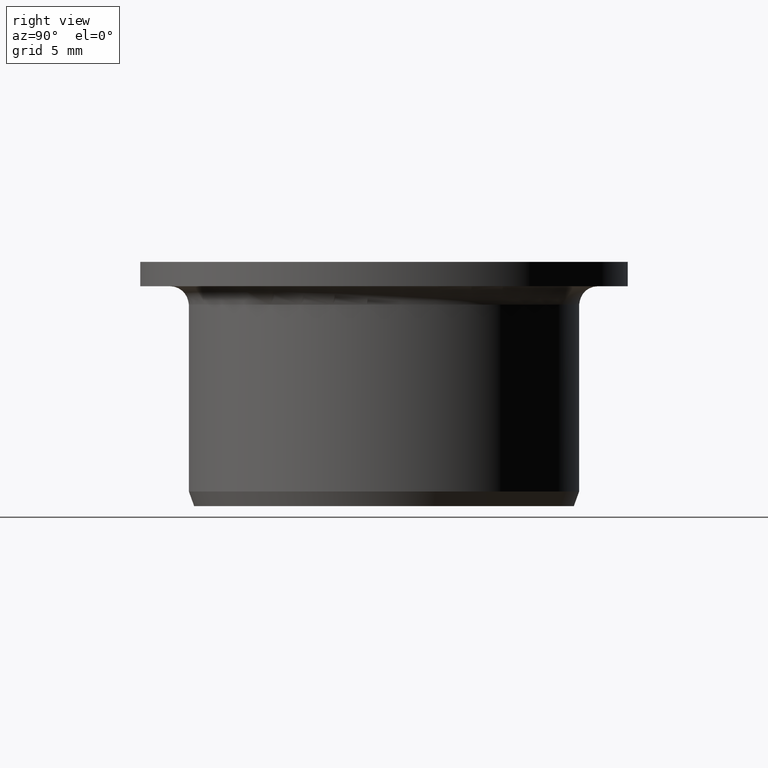
[diagram: clean part render]
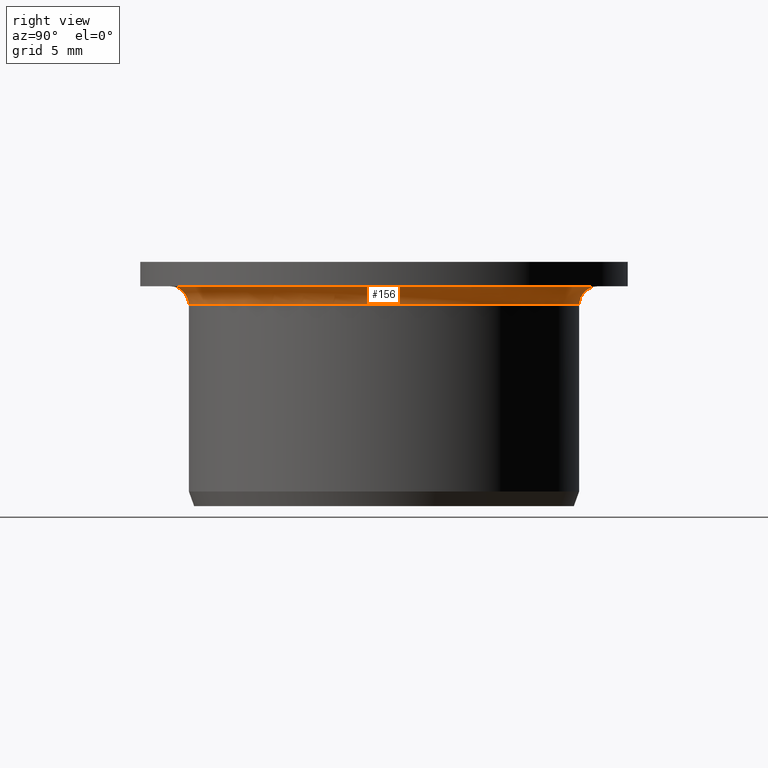
[diagram: same view with one face highlighted and labeled with its STEP entity id]
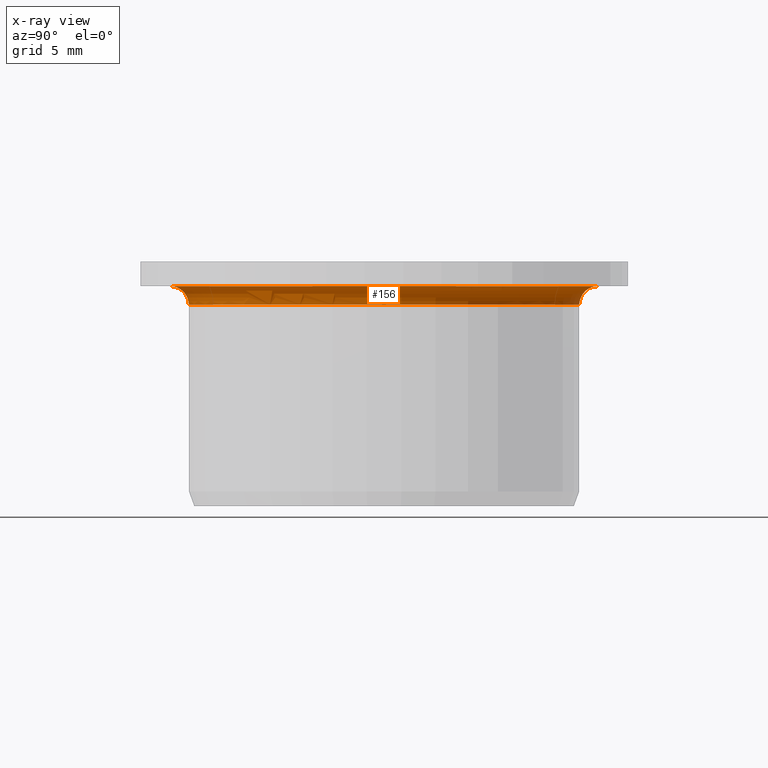
[diagram: x-ray of the same camera — body ghosted, the highlighted face saturated]
A machine part, right view. The second image highlights one B-rep face of the part: STEP entity #156.
The next image is the same camera in x-ray: the body ghosted, the highlighted face saturated — about 0% of this face is hidden behind the body in this view.
In plain terms, the highlighted toroidal blend (fillet) surface has major radius 17.5 mm and minor (blend) radius 1.5 mm.
Its self-contained STEP definition (entity closure, byte-faithful):
#156=ADVANCED_FACE('',(#173),#174,.F.);
#173=FACE_OUTER_BOUND('',#198,.T.);
#174=TOROIDAL_SURFACE('',#199,0.0175,0.0015);
#198=EDGE_LOOP('',(#243,#244,#245,#246));
#199=AXIS2_PLACEMENT_3D('',#247,#248,#249);
#243=ORIENTED_EDGE('',*,*,#328,.T.);
#244=ORIENTED_EDGE('',*,*,#329,.T.);
#245=ORIENTED_EDGE('',*,*,#330,.F.);
#246=ORIENTED_EDGE('',*,*,#316,.F.);
#247=CARTESIAN_POINT('',(0.0,0.0,0.0165));
#248=DIRECTION('',(0.0,-6.12323399573677E-017,-1.0));
#249=DIRECTION('',(0.0,1.0,-6.12323399573677E-017));
#316=EDGE_CURVE('',#349,#351,#352,.T.);
#328=EDGE_CURVE('',#349,#372,#373,.T.);
#329=EDGE_CURVE('',#372,#374,#375,.T.);
#330=EDGE_CURVE('',#351,#374,#376,.T.);
#349=VERTEX_POINT('',#418);
#351=VERTEX_POINT('',#421);
#352=B_SPLINE_CURVE_WITH_KNOTS('',3,(#422,#423,#424,#425,#426,#427,#428,#429,#430,#431,#432,#433,#434,#435),.UNSPECIFIED.,.F.,.F.,(4,2,2,2,2,2,4),(1.80924599605645E-005,0.000312356703172426,0.000606620946384288,0.00090088518959615,0.00119514943280801,0.00178367791923174,0.00237220640565547),.UNSPECIFIED.);
#372=VERTEX_POINT('',#484);
#373=CIRCLE('',#485,0.0175);
#374=VERTEX_POINT('',#486);
#375=B_SPLINE_CURVE_WITH_KNOTS('',3,(#487,#488,#489,#490,#491,#492,#493,#494,#495,#496,#497,#498,#499,#500),.UNSPECIFIED.,.F.,.F.,(4,2,2,2,2,2,4),(1.80924599605645E-005,0.000312356703172429,0.000606620946384293,0.000900885189596157,0.00119514943280802,0.00178367791923175,0.00237220640565548),.UNSPECIFIED.);
#376=CIRCLE('',#501,0.016);
#418=CARTESIAN_POINT('',(0.0174821448752821,-0.000790323072956412,0.018));
#421=CARTESIAN_POINT('',(0.0159913038571897,-0.000527447577519833,0.0165));
#422=CARTESIAN_POINT('',(0.0174821448752821,-0.000790323072956413,0.018));
#423=CARTESIAN_POINT('',(0.0173843520238893,-0.000773079554735449,0.018));
#424=CARTESIAN_POINT('',(0.0172880512966569,-0.00075609913826253,0.0179903969592375));
#425=CARTESIAN_POINT('',(0.0170983322540585,-0.000722646552298248,0.0179526401971581));
#426=CARTESIAN_POINT('',(0.0170039195668104,-0.000705999048215224,0.017924008857475));
#427=CARTESIAN_POINT('',(0.0168240902505482,-0.000674290287835843,0.0178493692083014));
#428=CARTESIAN_POINT('',(0.0167386362751922,-0.000659222446371791,0.0178036413444659));
#429=CARTESIAN_POINT('',(0.0165766367715526,-0.000630657563018748,0.0176953938886217));
#430=CARTESIAN_POINT('',(0.0164998630234948,-0.00061712027982604,0.0176323512176313));
#431=CARTESIAN_POINT('',(0.0162931624869087,-0.000580673398298983,0.01742552602038));
#432=CARTESIAN_POINT('',(0.0161813383319981,-0.000560955782693336,0.017258305897754));
#433=CARTESIAN_POINT('',(0.0160313222281505,-0.000534503896044239,0.0168967698691225));
#434=CARTESIAN_POINT('',(0.0159913038571875,-0.000527447577519462,0.0166990421263409));
#435=CARTESIAN_POINT('',(0.0159913038571875,-0.000527447577519456,0.0165000000000003));
#484=CARTESIAN_POINT('',(0.0174821448752821,0.000790323072956416,0.018));
#485=AXIS2_PLACEMENT_3D('',#544,#545,#546);
#486=CARTESIAN_POINT('',(0.0159913038571897,0.000527447577519836,0.0165));
#487=CARTESIAN_POINT('',(0.0174821448752821,0.000790323072956416,0.018));
#488=CARTESIAN_POINT('',(0.0173843520238893,0.000773079554735451,0.018));
#489=CARTESIAN_POINT('',(0.0172880512966569,0.000756099138262533,0.0179903969592375));
#490=CARTESIAN_POINT('',(0.0170983322540585,0.000722646552298251,0.0179526401971581));
#491=CARTESIAN_POINT('',(0.0170039195668104,0.000705999048215227,0.017924008857475));
#492=CARTESIAN_POINT('',(0.0168240902505482,0.000674290287835846,0.0178493692083014));
#493=CARTESIAN_POINT('',(0.0167386362751922,0.000659222446371794,0.0178036413444659));
#494=CARTESIAN_POINT('',(0.0165766367715526,0.000630657563018751,0.0176953938886217));
#495=CARTESIAN_POINT('',(0.0164998630234948,0.000617120279826042,0.0176323512176313));
#496=CARTESIAN_POINT('',(0.0162931624869086,0.000580673398298985,0.01742552602038));
#497=CARTESIAN_POINT('',(0.0161813383319981,0.000560955782693339,0.017258305897754));
#498=CARTESIAN_POINT('',(0.0160313222281505,0.000534503896044241,0.0168967698691225));
#499=CARTESIAN_POINT('',(0.0159913038571875,0.000527447577519464,0.0166990421263409));
#500=CARTESIAN_POINT('',(0.0159913038571875,0.000527447577519459,0.0165000000000003));
#501=AXIS2_PLACEMENT_3D('',#547,#548,#549);
#544=CARTESIAN_POINT('',(0.0,0.0,0.018));
#545=DIRECTION('',(0.0,-6.12323399573677E-017,-1.0));
#546=DIRECTION('',(0.0,1.0,-6.12323399573677E-017));
#547=CARTESIAN_POINT('',(0.0,0.0,0.0165));
#548=DIRECTION('',(0.0,-6.12323399573677E-017,-1.0));
#549=DIRECTION('',(0.0,1.0,-6.12323399573677E-017));